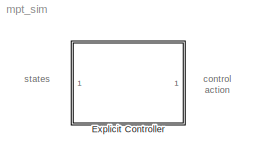
MODEL mpt_sim
KIND library
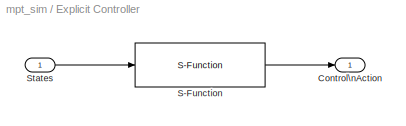
BLOCK [SubSystem] Explicit Controller
  FunctionWithSeparateData = off
  MaskDescription = Evaluates explicit controller for a given state.
  MaskDisplay = image(imread('mpt_ctrl.jpg'));
  MaskHelp = Evaluation of an explicit control law is performed by the C-code S-function \"mpt_getInput_sfunc\", which requires the controller to be exported to C-code using \"exportToC\".
  MaskHideContents = off
  MaskIconFrame = on
  MaskIconOpaque = on
  MaskIconRotate = none
  MaskIconUnits = normalized
  MaskPortRotate = default
  MaskSelfModifiable = on
  MaskType = MPT Controller
  MinAlgLoopOccurrences = off
  Opaque = off
  Ports = [1, 1]
  PropExecContextOutsideSubsystem = off
  RTWSystemCode = Auto
  RequestExecContextInheritance = off
  SID = 8
BLOCK [Outport] Explicit Controller/Control\nAction
  IconDisplay = Port number
  SID = 8:6
BLOCK [S-Function] Explicit Controller/S-Function
  EnableBusSupport = off
  FunctionName = mpt_getInput_sfunc
  Ports = [1, 1]
  SID = 8:5
BLOCK [Inport] Explicit Controller/States
  IconDisplay = Port number
  SID = 8:1
ANNOTATION (root): control\naction
ANNOTATION (root): states
LINE Explicit Controller/S-Function:1 -> Explicit Controller/Control\nAction:1
LINE Explicit Controller/States:1 -> Explicit Controller/S-Function:1
